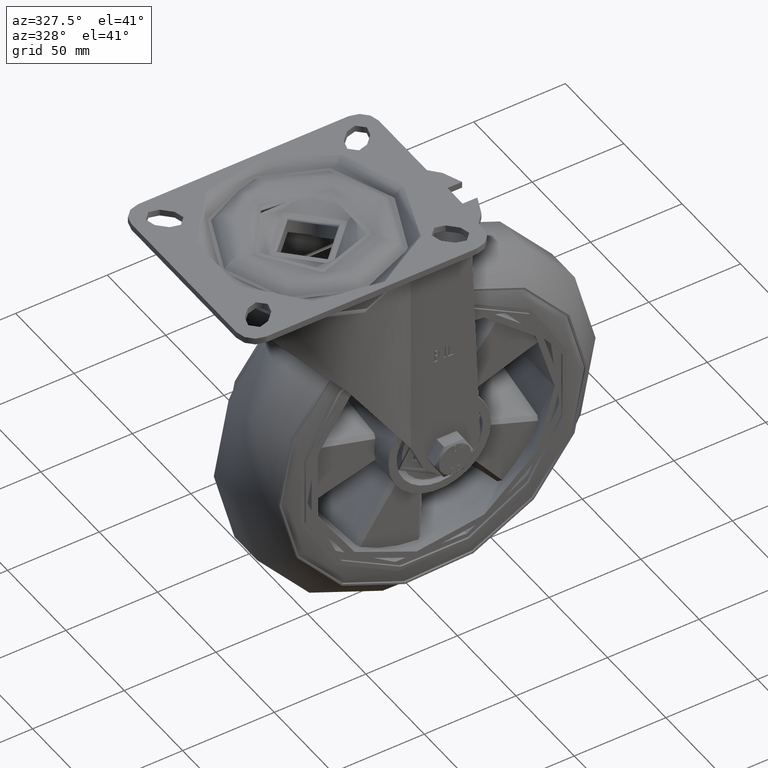
[diagram: clean part render]
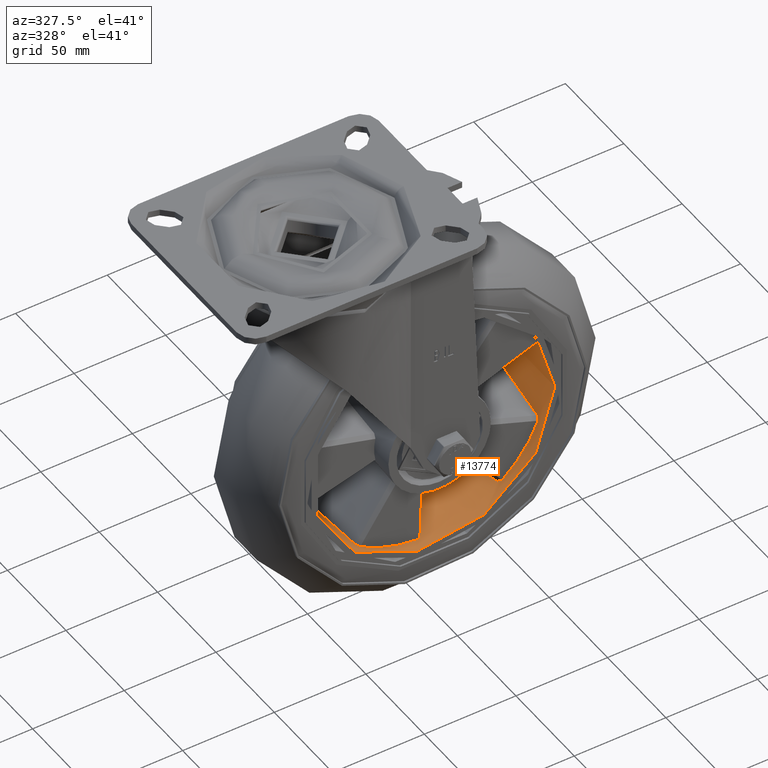
[diagram: same view with one face highlighted and labeled with its STEP entity id]
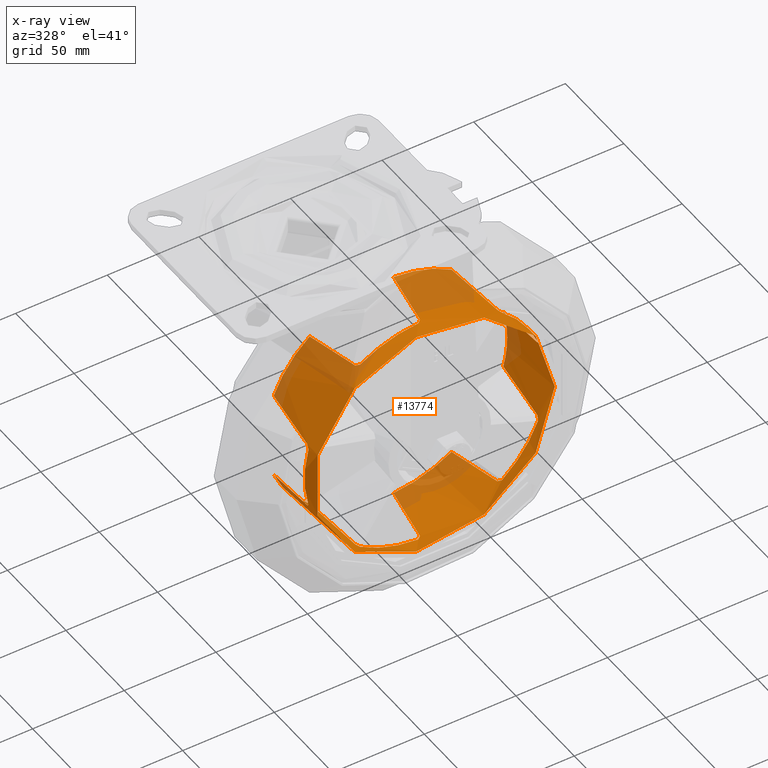
[diagram: x-ray of the same camera — body ghosted, the highlighted face saturated]
A machine part, auxiliary view. The second image highlights one B-rep face of the part: STEP entity #13774.
The next image is the same camera in x-ray: the body ghosted, the highlighted face saturated — about 31% of this face is hidden behind the body in this view.
In plain terms, the highlighted cylindrical surface (bore or boss wall) has radius 66 mm, axis along (-0, 1, -0).
Its self-contained STEP definition (entity closure, byte-faithful):
#1314=B_SPLINE_CURVE_WITH_KNOTS('',3,(#23338,#23339,#23340,#23341,#23342,
#23343,#23344),.UNSPECIFIED.,.F.,.F.,(4,3,4),(0.000373309078913234,1.61933112075885,
3.23828386339741),.UNSPECIFIED.);
#1315=B_SPLINE_CURVE_WITH_KNOTS('',3,(#23346,#23347,#23348,#23349,#23350,
#23351,#23352,#23353,#23354,#23355),.UNSPECIFIED.,.F.,.F.,(4,2,2,2,4),(-0.278702464257181,
-0.209075459326917,-0.13944982305344,-0.0697292167857195,-1.36745781365022E-10),
 .UNSPECIFIED.);
#1316=B_SPLINE_CURVE_WITH_KNOTS('',3,(#23359,#23360,#23361,#23362,#23363,
#23364,#23365,#23366,#23367,#23368),.UNSPECIFIED.,.F.,.F.,(4,2,2,2,4),(-0.278699814118605,
-0.20907020809636,-0.139448428934498,-0.0697253856518913,0.),
 .UNSPECIFIED.);
#1317=B_SPLINE_CURVE_WITH_KNOTS('',3,(#23370,#23371,#23372,#23373,#23374,
#23375,#23376),.UNSPECIFIED.,.F.,.F.,(4,3,4),(0.000373309696829027,1.61933112069939,
3.23828386333807),.UNSPECIFIED.);
#1318=B_SPLINE_CURVE_WITH_KNOTS('',3,(#23380,#23381,#23382,#23383,#23384,
#23385,#23386),.UNSPECIFIED.,.F.,.F.,(4,3,4),(0.000373308474533572,1.61933112069983,
3.23828386334072),.UNSPECIFIED.);
#1319=B_SPLINE_CURVE_WITH_KNOTS('',3,(#23388,#23389,#23390,#23391,#23392,
#23393,#23394,#23395,#23396,#23397),.UNSPECIFIED.,.F.,.F.,(4,2,2,2,4),(-0.278702463951982,
-0.209075459151046,-0.139449822948828,-0.0697292158378506,-8.03676569738343E-11),
 .UNSPECIFIED.);
#1320=B_SPLINE_CURVE_WITH_KNOTS('',3,(#23401,#23402,#23403,#23404,#23405,
#23406,#23407,#23408,#23409,#23410),.UNSPECIFIED.,.F.,.F.,(4,2,2,2,4),(-0.278699813644394,
-0.209070207647534,-0.13944842849009,-0.0697253854688297,0.),
 .UNSPECIFIED.);
#1321=B_SPLINE_CURVE_WITH_KNOTS('',3,(#23412,#23413,#23414,#23415,#23416,
#23417,#23418),.UNSPECIFIED.,.F.,.F.,(4,3,4),(-3.23828386335999,-1.6193311207198,
-0.000373308290675459),.UNSPECIFIED.);
#1322=B_SPLINE_CURVE_WITH_KNOTS('',3,(#23422,#23423,#23424,#23425,#23426,
#23427,#23428),.UNSPECIFIED.,.F.,.F.,(4,3,4),(-3.23842418672423,-1.61946629773931,
-0.000513477994222188),.UNSPECIFIED.);
#1323=B_SPLINE_CURVE_WITH_KNOTS('',3,(#23430,#23431,#23432,#23433,#23434,
#23435,#23436,#23437,#23438,#23439),.UNSPECIFIED.,.F.,.F.,(4,2,2,2,4),(-0.278702464174348,
-0.209075459254645,-0.1394498230114,-0.0697292167454598,-1.02857999895178E-10),
 .UNSPECIFIED.);
#1324=B_SPLINE_CURVE_WITH_KNOTS('',3,(#23443,#23444,#23445,#23446,#23447,
#23448,#23449,#23450,#23451,#23452),.UNSPECIFIED.,.F.,.F.,(4,2,2,2,4),(-0.278699813819612,
-0.209070207832421,-0.139448428691425,-0.0697253855563032,0.),
 .UNSPECIFIED.);
#1325=B_SPLINE_CURVE_WITH_KNOTS('',3,(#23454,#23455,#23456,#23457,#23458,
#23459,#23460),.UNSPECIFIED.,.F.,.F.,(4,3,4),(0.000513477994222404,1.61946629773886,
3.23842418672286),.UNSPECIFIED.);
#1326=B_SPLINE_CURVE_WITH_KNOTS('',3,(#23464,#23465,#23466,#23467,#23468,
#23469,#23470),.UNSPECIFIED.,.F.,.F.,(4,3,4),(0.000513477994212666,1.61946629773902,
3.2384241872735),.UNSPECIFIED.);
#1327=B_SPLINE_CURVE_WITH_KNOTS('',3,(#23472,#23473,#23474,#23475,#23476,
#23477,#23478,#23479,#23480,#23481),.UNSPECIFIED.,.F.,.F.,(4,2,2,2,4),(-0.278702463878506,
-0.20907545904845,-0.13944982292566,-0.0697292166703985,-4.1014691642971E-11),
 .UNSPECIFIED.);
#1328=B_SPLINE_CURVE_WITH_KNOTS('',3,(#23485,#23486,#23487,#23488,#23489,
#23490,#23491,#23492,#23493,#23494),.UNSPECIFIED.,.F.,.F.,(4,2,2,2,4),(-0.278699813708521,
-0.20907020858314,-0.139448428607214,-0.069725385474952,0.),
 .UNSPECIFIED.);
#1329=B_SPLINE_CURVE_WITH_KNOTS('',3,(#23496,#23497,#23498,#23499,#23500,
#23501,#23502),.UNSPECIFIED.,.F.,.F.,(4,3,4),(0.000373308469160007,1.61933112069251,
3.23828386333113),.UNSPECIFIED.);
#1330=B_SPLINE_CURVE_WITH_KNOTS('',3,(#23506,#23507,#23508,#23509,#23510,
#23511,#23512),.UNSPECIFIED.,.F.,.F.,(4,3,4),(0.000513477994203987,1.61946629773909,
3.23842418584781),.UNSPECIFIED.);
#1331=B_SPLINE_CURVE_WITH_KNOTS('',3,(#23514,#23515,#23516,#23517,#23518,
#23519,#23520,#23521,#23522,#23523),.UNSPECIFIED.,.F.,.F.,(4,2,2,2,4),(-0.278702464622074,
-0.209075459567133,-0.13944982313113,-0.0697292168348464,-1.53688284321163E-10),
 .UNSPECIFIED.);
#1332=B_SPLINE_CURVE_WITH_KNOTS('',3,(#23527,#23528,#23529,#23530,#23531,
#23532,#23533,#23534,#23535,#23536),.UNSPECIFIED.,.F.,.F.,(4,2,2,2,4),(-0.278699813842626,
-0.20907020784408,-0.139448428697376,-0.0697253855500482,0.),
 .UNSPECIFIED.);
#1333=B_SPLINE_CURVE_WITH_KNOTS('',3,(#23538,#23539,#23540,#23541,#23542,
#23543,#23544),.UNSPECIFIED.,.F.,.F.,(4,3,4),(0.000373309048616162,1.61933112072778,
3.23828386336536),.UNSPECIFIED.);
#2113=FACE_OUTER_BOUND('',#2971,.T.);
#2971=EDGE_LOOP('',(#10207,#10208,#10209,#10210,#10211,#10212,#10213,#10214,
#10215,#10216,#10217,#10218,#10219,#10220,#10221,#10222,#10223,#10224,#10225,
#10226,#10227,#10228,#10229,#10230,#10231,#10232,#10233,#10234,#10235,#10236,
#10237,#10238,#10239,#10240));
#3934=LINE('',#23334,#4765);
#4765=VECTOR('',#16850,66.);
#5552=CIRCLE('',#15007,66.);
#5553=CIRCLE('',#15008,66.);
#5554=CIRCLE('',#15009,66.);
#5555=CIRCLE('',#15010,66.);
#5556=CIRCLE('',#15011,66.);
#5557=CIRCLE('',#15012,66.);
#5558=CIRCLE('',#15013,66.);
#5559=CIRCLE('',#15014,66.);
#5560=CIRCLE('',#15015,66.);
#5561=CIRCLE('',#15016,66.);
#5562=CIRCLE('',#15017,66.);
#5563=CIRCLE('',#15018,66.);
#6217=VERTEX_POINT('',#23331);
#6218=VERTEX_POINT('',#23333);
#6219=VERTEX_POINT('',#23335);
#6220=VERTEX_POINT('',#23337);
#6221=VERTEX_POINT('',#23345);
#6222=VERTEX_POINT('',#23356);
#6223=VERTEX_POINT('',#23358);
#6224=VERTEX_POINT('',#23369);
#6225=VERTEX_POINT('',#23377);
#6226=VERTEX_POINT('',#23379);
#6227=VERTEX_POINT('',#23387);
#6228=VERTEX_POINT('',#23398);
#6229=VERTEX_POINT('',#23400);
#6230=VERTEX_POINT('',#23411);
#6231=VERTEX_POINT('',#23419);
#6232=VERTEX_POINT('',#23421);
#6233=VERTEX_POINT('',#23429);
#6234=VERTEX_POINT('',#23440);
#6235=VERTEX_POINT('',#23442);
#6236=VERTEX_POINT('',#23453);
#6237=VERTEX_POINT('',#23461);
#6238=VERTEX_POINT('',#23463);
#6239=VERTEX_POINT('',#23471);
#6240=VERTEX_POINT('',#23482);
#6241=VERTEX_POINT('',#23484);
#6242=VERTEX_POINT('',#23495);
#6243=VERTEX_POINT('',#23503);
#6244=VERTEX_POINT('',#23505);
#6245=VERTEX_POINT('',#23513);
#6246=VERTEX_POINT('',#23524);
#6247=VERTEX_POINT('',#23526);
#6248=VERTEX_POINT('',#23537);
#7726=EDGE_CURVE('',#6217,#6217,#5552,.T.);
#7727=EDGE_CURVE('',#6217,#6218,#3934,.T.);
#7728=EDGE_CURVE('',#6219,#6218,#5553,.T.);
#7729=EDGE_CURVE('',#6220,#6219,#1314,.T.);
#7730=EDGE_CURVE('',#6221,#6220,#1315,.F.);
#7731=EDGE_CURVE('',#6222,#6221,#5554,.T.);
#7732=EDGE_CURVE('',#6223,#6222,#1316,.F.);
#7733=EDGE_CURVE('',#6223,#6224,#1317,.T.);
#7734=EDGE_CURVE('',#6225,#6224,#5555,.T.);
#7735=EDGE_CURVE('',#6226,#6225,#1318,.T.);
#7736=EDGE_CURVE('',#6227,#6226,#1319,.F.);
#7737=EDGE_CURVE('',#6228,#6227,#5556,.T.);
#7738=EDGE_CURVE('',#6229,#6228,#1320,.F.);
#7739=EDGE_CURVE('',#6230,#6229,#1321,.T.);
#7740=EDGE_CURVE('',#6231,#6230,#5557,.T.);
#7741=EDGE_CURVE('',#6232,#6231,#1322,.T.);
#7742=EDGE_CURVE('',#6233,#6232,#1323,.F.);
#7743=EDGE_CURVE('',#6234,#6233,#5558,.T.);
#7744=EDGE_CURVE('',#6235,#6234,#1324,.F.);
#7745=EDGE_CURVE('',#6236,#6235,#1325,.T.);
#7746=EDGE_CURVE('',#6237,#6236,#5559,.T.);
#7747=EDGE_CURVE('',#6237,#6238,#1326,.T.);
#7748=EDGE_CURVE('',#6239,#6238,#1327,.F.);
#7749=EDGE_CURVE('',#6240,#6239,#5560,.T.);
#7750=EDGE_CURVE('',#6241,#6240,#1328,.F.);
#7751=EDGE_CURVE('',#6241,#6242,#1329,.T.);
#7752=EDGE_CURVE('',#6243,#6242,#5561,.T.);
#7753=EDGE_CURVE('',#6243,#6244,#1330,.T.);
#7754=EDGE_CURVE('',#6245,#6244,#1331,.F.);
#7755=EDGE_CURVE('',#6246,#6245,#5562,.T.);
#7756=EDGE_CURVE('',#6247,#6246,#1332,.F.);
#7757=EDGE_CURVE('',#6247,#6248,#1333,.T.);
#7758=EDGE_CURVE('',#6218,#6248,#5563,.T.);
#10207=ORIENTED_EDGE('',*,*,#7726,.F.);
#10208=ORIENTED_EDGE('',*,*,#7727,.T.);
#10209=ORIENTED_EDGE('',*,*,#7728,.F.);
#10210=ORIENTED_EDGE('',*,*,#7729,.F.);
#10211=ORIENTED_EDGE('',*,*,#7730,.F.);
#10212=ORIENTED_EDGE('',*,*,#7731,.F.);
#10213=ORIENTED_EDGE('',*,*,#7732,.F.);
#10214=ORIENTED_EDGE('',*,*,#7733,.T.);
#10215=ORIENTED_EDGE('',*,*,#7734,.F.);
#10216=ORIENTED_EDGE('',*,*,#7735,.F.);
#10217=ORIENTED_EDGE('',*,*,#7736,.F.);
#10218=ORIENTED_EDGE('',*,*,#7737,.F.);
#10219=ORIENTED_EDGE('',*,*,#7738,.F.);
#10220=ORIENTED_EDGE('',*,*,#7739,.F.);
#10221=ORIENTED_EDGE('',*,*,#7740,.F.);
#10222=ORIENTED_EDGE('',*,*,#7741,.F.);
#10223=ORIENTED_EDGE('',*,*,#7742,.F.);
#10224=ORIENTED_EDGE('',*,*,#7743,.F.);
#10225=ORIENTED_EDGE('',*,*,#7744,.F.);
#10226=ORIENTED_EDGE('',*,*,#7745,.F.);
#10227=ORIENTED_EDGE('',*,*,#7746,.F.);
#10228=ORIENTED_EDGE('',*,*,#7747,.T.);
#10229=ORIENTED_EDGE('',*,*,#7748,.F.);
#10230=ORIENTED_EDGE('',*,*,#7749,.F.);
#10231=ORIENTED_EDGE('',*,*,#7750,.F.);
#10232=ORIENTED_EDGE('',*,*,#7751,.T.);
#10233=ORIENTED_EDGE('',*,*,#7752,.F.);
#10234=ORIENTED_EDGE('',*,*,#7753,.T.);
#10235=ORIENTED_EDGE('',*,*,#7754,.F.);
#10236=ORIENTED_EDGE('',*,*,#7755,.F.);
#10237=ORIENTED_EDGE('',*,*,#7756,.F.);
#10238=ORIENTED_EDGE('',*,*,#7757,.T.);
#10239=ORIENTED_EDGE('',*,*,#7758,.F.);
#10240=ORIENTED_EDGE('',*,*,#7727,.F.);
#13459=CYLINDRICAL_SURFACE('',#15006,66.);
#13774=ADVANCED_FACE('',(#2113),#13459,.F.);
#15006=AXIS2_PLACEMENT_3D('',#23330,#16846,#16847);
#15007=AXIS2_PLACEMENT_3D('',#23332,#16848,#16849);
#15008=AXIS2_PLACEMENT_3D('',#23336,#16851,#16852);
#15009=AXIS2_PLACEMENT_3D('',#23357,#16853,#16854);
#15010=AXIS2_PLACEMENT_3D('',#23378,#16855,#16856);
#15011=AXIS2_PLACEMENT_3D('',#23399,#16857,#16858);
#15012=AXIS2_PLACEMENT_3D('',#23420,#16859,#16860);
#15013=AXIS2_PLACEMENT_3D('',#23441,#16861,#16862);
#15014=AXIS2_PLACEMENT_3D('',#23462,#16863,#16864);
#15015=AXIS2_PLACEMENT_3D('',#23483,#16865,#16866);
#15016=AXIS2_PLACEMENT_3D('',#23504,#16867,#16868);
#15017=AXIS2_PLACEMENT_3D('',#23525,#16869,#16870);
#15018=AXIS2_PLACEMENT_3D('',#23545,#16871,#16872);
#16846=DIRECTION('center_axis',(-3.38669239203968E-15,1.,0.));
#16847=DIRECTION('ref_axis',(-1.,-3.38669239203968E-15,0.));
#16848=DIRECTION('center_axis',(-3.38669239203968E-15,1.,0.));
#16849=DIRECTION('ref_axis',(-1.,-3.38669239203968E-15,0.));
#16850=DIRECTION('',(-3.38669239203968E-15,1.,0.));
#16851=DIRECTION('center_axis',(3.59602151677234E-15,-1.,-6.44248801041007E-16));
#16852=DIRECTION('ref_axis',(-0.809016994374947,-2.53056257514779E-15,-0.587785252292473));
#16853=DIRECTION('center_axis',(3.38669239203968E-15,-1.,0.));
#16854=DIRECTION('ref_axis',(-1.,-3.38669239203968E-15,0.));
#16855=DIRECTION('center_axis',(3.59602151677234E-15,-1.,-6.44248801041007E-16));
#16856=DIRECTION('ref_axis',(-0.809016994374947,-2.53056257514779E-15,-0.587785252292473));
#16857=DIRECTION('center_axis',(3.38669239203968E-15,-1.,0.));
#16858=DIRECTION('ref_axis',(-1.,-3.38669239203968E-15,0.));
#16859=DIRECTION('center_axis',(3.59602151677234E-15,-1.,-6.44248801041007E-16));
#16860=DIRECTION('ref_axis',(-0.809016994374947,-2.53056257514779E-15,-0.587785252292473));
#16861=DIRECTION('center_axis',(3.38669239203968E-15,-1.,0.));
#16862=DIRECTION('ref_axis',(-1.,-3.38669239203968E-15,0.));
#16863=DIRECTION('center_axis',(3.59602151677234E-15,-1.,-6.44248801041007E-16));
#16864=DIRECTION('ref_axis',(-0.809016994374947,-2.53056257514779E-15,-0.587785252292473));
#16865=DIRECTION('center_axis',(3.38669239203968E-15,-1.,0.));
#16866=DIRECTION('ref_axis',(-1.,-3.38669239203968E-15,0.));
#16867=DIRECTION('center_axis',(3.59602151677234E-15,-1.,-6.44248801041007E-16));
#16868=DIRECTION('ref_axis',(-0.809016994374947,-2.53056257514779E-15,-0.587785252292473));
#16869=DIRECTION('center_axis',(3.38669239203968E-15,-1.,0.));
#16870=DIRECTION('ref_axis',(-1.,-3.38669239203968E-15,0.));
#16871=DIRECTION('center_axis',(3.59602151677234E-15,-1.,-6.44248801041007E-16));
#16872=DIRECTION('ref_axis',(-0.809016994374947,-2.53056257514779E-15,-0.587785252292473));
#23330=CARTESIAN_POINT('Origin',(-6.93889390390724E-15,3.49213689726077E-15,
0.));
#23331=CARTESIAN_POINT('',(66.0000000000001,-24.9999999999998,8.08266887437253E-15));
#23332=CARTESIAN_POINT('Origin',(7.77284158970849E-14,-25.,0.));
#23333=CARTESIAN_POINT('',(65.9999999999999,15.7500000000004,-8.08266887437253E-15));
#23334=CARTESIAN_POINT('',(66.,2.2701383477188E-13,-8.08266887437253E-15));
#23335=CARTESIAN_POINT('',(63.8541855060899,15.7499999995693,-16.6926029560646));
#23336=CARTESIAN_POINT('Origin',(-8.82230593111864E-14,15.7500000000001,
-2.98073805919023E-14));
#23337=CARTESIAN_POINT('',(62.1582067025586,-16.1048068882104,-22.1836020837835));
#23338=CARTESIAN_POINT('Ctrl Pts',(62.1599495072485,-16.1048034630644,-22.1842438964292));
#23339=CARTESIAN_POINT('Ctrl Pts',(62.4817673644864,-10.793891410378,-21.2825146395724));
#23340=CARTESIAN_POINT('Ctrl Pts',(62.7841755685075,-5.48800579538183,-20.3731891581357));
#23341=CARTESIAN_POINT('Ctrl Pts',(63.0668681958044,-0.177374521074633,
-19.456878845088));
#23342=CARTESIAN_POINT('Ctrl Pts',(63.3495599379759,5.13324012536901,-18.5405714010556));
#23343=CARTESIAN_POINT('Ctrl Pts',(63.6120301688618,10.4391074836043,-17.6189193505488));
#23344=CARTESIAN_POINT('Ctrl Pts',(63.8541855054961,15.7499999995408,-16.6926029554866));
#23345=CARTESIAN_POINT('',(61.470787075102,-17.7499999999997,-24.0279490666837));
#23346=CARTESIAN_POINT('Ctrl Pts',(62.159948771819,-16.104815520309,-22.184245957094));
#23347=CARTESIAN_POINT('Ctrl Pts',(62.1461080073904,-16.3332275877814,-22.223027586612));
#23348=CARTESIAN_POINT('Ctrl Pts',(62.1190038296965,-16.5529695080678,-22.2989478419109));
#23349=CARTESIAN_POINT('Ctrl Pts',(62.0394885038554,-16.9561333958003,-22.5192268359961));
#23350=CARTESIAN_POINT('Ctrl Pts',(61.9879529154006,-17.1350197482125,-22.6610984058333));
#23351=CARTESIAN_POINT('Ctrl Pts',(61.8647284326672,-17.4330827443555,-22.9953723617695));
#23352=CARTESIAN_POINT('Ctrl Pts',(61.7938162765813,-17.5501881824202,-23.1856078628594));
#23353=CARTESIAN_POINT('Ctrl Pts',(61.6382843326253,-17.709551581361,-23.5959754707505));
#23354=CARTESIAN_POINT('Ctrl Pts',(61.5554057654661,-17.7499999998401,-23.8114687722008));
#23355=CARTESIAN_POINT('Ctrl Pts',(61.4707870752172,-17.7499999999997,-24.0279490667288));
#23356=CARTESIAN_POINT('',(41.8474553979896,-17.7499999999997,-51.0371480073889));
#23357=CARTESIAN_POINT('Origin',(5.42709575815677E-14,-17.7499999999999,
0.));
#23358=CARTESIAN_POINT('',(40.3058015608174,-16.1048068445291,-52.2608575243825));
#23359=CARTESIAN_POINT('Ctrl Pts',(41.8474553979183,-17.7499999999997,-51.037148007302));
#23360=CARTESIAN_POINT('Ctrl Pts',(41.6679694922204,-17.7499999998201,-51.1843158786762));
#23361=CARTESIAN_POINT('Ctrl Pts',(41.4888816929355,-17.7096648921843,-51.3295308137281));
#23362=CARTESIAN_POINT('Ctrl Pts',(41.1470759414285,-17.5507315368467,-51.6039355898291));
#23363=CARTESIAN_POINT('Ctrl Pts',(40.9882268424016,-17.4339369534704,-51.7300395946424));
#23364=CARTESIAN_POINT('Ctrl Pts',(40.7081698852323,-17.1362185757035,-51.9507144621652));
#23365=CARTESIAN_POINT('Ctrl Pts',(40.5888988829294,-16.9571863963757,-52.0437802136764));
#23366=CARTESIAN_POINT('Ctrl Pts',(40.4035659490992,-16.5535803885018,-52.1877919726466));
#23367=CARTESIAN_POINT('Ctrl Pts',(40.3396042139595,-16.3335463307842,-52.2371326948384));
#23368=CARTESIAN_POINT('Ctrl Pts',(40.3069522231388,-16.1048155119209,-52.2623153187994));
#23369=CARTESIAN_POINT('',(35.6076372986452,15.7499999995691,-55.5706412245089));
#23370=CARTESIAN_POINT('Ctrl Pts',(40.3069504830568,-16.1048034563983,-52.2623166608249));
#23371=CARTESIAN_POINT('Ctrl Pts',(39.5488021846751,-10.7938914059378,-52.847033295447));
#23372=CARTESIAN_POINT('Ctrl Pts',(38.7774315347198,-5.48800579315972,-53.4156376153996));
#23373=CARTESIAN_POINT('Ctrl Pts',(37.9933254668946,-0.177374521074752,
-53.9676497393208));
#23374=CARTESIAN_POINT('Ctrl Pts',(37.2092218538184,5.13324012536897,-54.5196601350941));
#23375=CARTESIAN_POINT('Ctrl Pts',(36.4137864272883,10.4391074836045,-55.0540903050187));
#23376=CARTESIAN_POINT('Ctrl Pts',(35.607637297912,15.7499999995406,-55.5706412241228));
#23377=CARTESIAN_POINT('',(3.85641966805917,15.749999999569,-65.8872372120639));
#23378=CARTESIAN_POINT('Origin',(-8.82230593111864E-14,15.7500000000001,
-2.98073805919023E-14));
#23379=CARTESIAN_POINT('',(-1.88991709818651,-16.1048068950924,-65.9710775665634));
#23380=CARTESIAN_POINT('Ctrl Pts',(-1.88998895051525,-16.1048034684125,
-65.972933402774));
#23381=CARTESIAN_POINT('Ctrl Pts',(-0.932946277546101,-10.7938914139333,
-66.0003507082896));
#23382=CARTESIAN_POINT('Ctrl Pts',(0.0253229216092964,-5.48800579716116,
-66.0069609741321));
#23383=CARTESIAN_POINT('Ctrl Pts',(0.984142642122192,-0.177374521074967,
-65.9926621805739));
#23384=CARTESIAN_POINT('Ctrl Pts',(1.94295936019891,5.13324012536633,-65.9783634317907));
#23385=CARTESIAN_POINT('Ctrl Pts',(2.90061031045102,10.4391074835994,-65.9431813087012));
#23386=CARTESIAN_POINT('Ctrl Pts',(3.85641966842541,15.7499999995405,-65.8872372113204));
#23387=CARTESIAN_POINT('',(-3.85641966858823,-17.7499999999999,-65.8872372113122));
#23388=CARTESIAN_POINT('Ctrl Pts',(-1.88999112910869,-16.1048155271765,
-65.9729333403623));
#23389=CARTESIAN_POINT('Ctrl Pts',(-1.93115168394251,-16.3332275939047,
-65.9717541737016));
#23390=CARTESIAN_POINT('Ctrl Pts',(-2.01173179033912,-16.5529695132211,
-65.9694372179575));
#23391=CARTESIAN_POINT('Ctrl Pts',(-2.24580115188607,-16.9561333991494,
-65.9618836018004));
#23392=CARTESIAN_POINT('Ctrl Pts',(-2.3966544060471,-17.135019750771,-65.9567110706625));
#23393=CARTESIAN_POINT('Ctrl Pts',(-2.75264629225342,-17.4330827475479,
-65.9428139564483));
#23394=CARTESIAN_POINT('Ctrl Pts',(-2.95548406951898,-17.5501881861809,
-65.9341584909547));
#23395=CARTESIAN_POINT('Ctrl Pts',(-3.39382887162302,-17.7095515825514,
-65.9130493868619));
#23396=CARTESIAN_POINT('Ctrl Pts',(-3.62438606351263,-17.7499999999061,
-65.9008182779385));
#23397=CARTESIAN_POINT('Ctrl Pts',(-3.85641966858823,-17.7499999999999,
-65.8872372113122));
#23398=CARTESIAN_POINT('',(-35.6076372977754,-17.7500000000001,-55.5706412242118));
#23399=CARTESIAN_POINT('Origin',(5.42709575815677E-14,-17.7499999999999,
0.));
#23400=CARTESIAN_POINT('',(-37.2478514564847,-16.1048068622877,-54.4825883242611));
#23401=CARTESIAN_POINT('Ctrl Pts',(-35.6076372977754,-17.7500000000001,
-55.5706412242118));
#23402=CARTESIAN_POINT('Ctrl Pts',(-35.8030664556974,-17.7499999999523,
-55.445417357447));
#23403=CARTESIAN_POINT('Ctrl Pts',(-35.9965152401099,-17.7096648926119,
-55.3199686212526));
#23404=CARTESIAN_POINT('Ctrl Pts',(-36.3631134765183,-17.5507315389452,
-55.0796877731054));
#23405=CARTESIAN_POINT('Ctrl Pts',(-36.5321325834561,-17.4339369567506,
-54.967581582716));
#23406=CARTESIAN_POINT('Ctrl Pts',(-36.8285492143188,-17.1362185824178,
-54.7694238722932));
#23407=CARTESIAN_POINT('Ctrl Pts',(-36.9539167712625,-16.9571864055199,
-54.6847493065593));
#23408=CARTESIAN_POINT('Ctrl Pts',(-37.1481511230639,-16.5535804024747,
-54.5529892904321));
#23409=CARTESIAN_POINT('Ctrl Pts',(-37.2148422044735,-16.3335463469502,
-54.5074051851085));
#23410=CARTESIAN_POINT('Ctrl Pts',(-37.2488823271942,-16.1048155296868,
-54.4841331524586));
#23411=CARTESIAN_POINT('',(-41.8474553964487,15.7499999995688,-51.0371480094372));
#23412=CARTESIAN_POINT('Ctrl Pts',(-41.8474553963081,15.7499999995403,-51.0371480086206));
#23413=CARTESIAN_POINT('Ctrl Pts',(-41.1070724977183,10.4391074836053,-51.6442183787564));
#23414=CARTESIAN_POINT('Ctrl Pts',(-40.3529961373809,5.13324012536934,-52.2355744196364));
#23415=CARTESIAN_POINT('Ctrl Pts',(-39.5857017116265,-0.177374521075092,
-52.8107206769376));
#23416=CARTESIAN_POINT('Ctrl Pts',(-38.8184048830714,-5.48800579783534,
-53.3858687353229));
#23417=CARTESIAN_POINT('Ctrl Pts',(-38.0392633988922,-10.7938914152803,
-53.9437774209773));
#23418=CARTESIAN_POINT('Ctrl Pts',(-37.2488841241761,-16.1048034704294,
-54.4841319239246));
#23419=CARTESIAN_POINT('',(-61.4707870763458,15.7499999995687,-24.0279490658178));
#23420=CARTESIAN_POINT('Origin',(-8.82230593111864E-14,15.7500000000001,
-2.98073805919023E-14));
#23421=CARTESIAN_POINT('',(-63.3262397092077,-16.1048068907978,-18.5887661295818));
#23422=CARTESIAN_POINT('Ctrl Pts',(-63.3280269165323,-16.1048034650209,
-18.5892712836971));
#23423=CARTESIAN_POINT('Ctrl Pts',(-63.0583598733616,-10.7938914116777,
-19.5079453673429));
#23424=CARTESIAN_POINT('Ctrl Pts',(-62.7685251420979,-5.48800579603246,
-20.4213562178519));
#23425=CARTESIAN_POINT('Ctrl Pts',(-62.4586345931947,-0.177374521075178,
-21.3288293905965));
#23426=CARTESIAN_POINT('Ctrl Pts',(-62.148745014613,5.13324012536832,-22.2362997218842));
#23427=CARTESIAN_POINT('Ctrl Pts',(-61.8193544088844,10.4391074836034,-23.1362080245253));
#23428=CARTESIAN_POINT('Ctrl Pts',(-61.4707870755257,15.7499999995402,-24.0279490659364));
#23429=CARTESIAN_POINT('',(-63.8541855057228,-17.7500000000002,-16.6926029548475));
#23430=CARTESIAN_POINT('Ctrl Pts',(-63.3280275318044,-16.1048155228844,
-18.589269187653));
#23431=CARTESIAN_POINT('Ctrl Pts',(-63.3396253882823,-16.333227590169,-18.5497587923314));
#23432=CARTESIAN_POINT('Ctrl Pts',(-63.3623224544921,-16.5529695101702,
-18.4724065790886));
#23433=CARTESIAN_POINT('Ctrl Pts',(-63.4274699489164,-16.9561333972209,
-18.2474591927324));
#23434=CARTESIAN_POINT('Ctrl Pts',(-63.4691667985694,-17.1350197492796,
-18.102390822656));
#23435=CARTESIAN_POINT('Ctrl Pts',(-63.5659573995115,-17.4330827448999,
-17.7595279776132));
#23436=CARTESIAN_POINT('Ctrl Pts',(-63.6204058821518,-17.5501881827712,
-17.5639431046795));
#23437=CARTESIAN_POINT('Ctrl Pts',(-63.7357859242636,-17.7095515814335,
-17.1405293530346));
#23438=CARTESIAN_POINT('Ctrl Pts',(-63.7953995395977,-17.7499999998802,
-16.9174768102021));
#23439=CARTESIAN_POINT('Ctrl Pts',(-63.8541855056682,-17.7500000000002,
-16.6926029548332));
#23440=CARTESIAN_POINT('',(-63.8541855057659,-17.7500000000002,16.6926029548597));
#23441=CARTESIAN_POINT('Origin',(5.42709575815677E-14,-17.7499999999999,
0.));
#23442=CARTESIAN_POINT('',(-63.3262397564527,-16.1048068554957,18.5887661495637));
#23443=CARTESIAN_POINT('Ctrl Pts',(-63.854185505668,-17.7500000000002,16.6926029548341));
#23444=CARTESIAN_POINT('Ctrl Pts',(-63.7954814621661,-17.7499999998802,
16.9171634319415));
#23445=CARTESIAN_POINT('Ctrl Pts',(-63.7359515862186,-17.7096648924694,
17.1399099497933));
#23446=CARTESIAN_POINT('Ctrl Pts',(-63.6207160050332,-17.5507315382403,
17.562816456816));
#23447=CARTESIAN_POINT('Ctrl Pts',(-63.5663264586088,-17.4339369556469,
17.7582058977026));
#23448=CARTESIAN_POINT('Ctrl Pts',(-63.4694650533184,-17.1362185800609,
18.1013489657542));
#23449=CARTESIAN_POINT('Ctrl Pts',(-63.427675461546,-16.9571864022129,18.246746477201));
#23450=CARTESIAN_POINT('Ctrl Pts',(-63.3623859556857,-16.5535803972472,
18.4721904057566));
#23451=CARTESIAN_POINT('Ctrl Pts',(-63.3396415731731,-16.3335463408264,
18.5497036552949));
#23452=CARTESIAN_POINT('Ctrl Pts',(-63.3280275318044,-16.1048155228844,
18.5892691876529));
#23453=CARTESIAN_POINT('',(-61.4707870763458,15.7499999995687,24.0279490658177));
#23454=CARTESIAN_POINT('Ctrl Pts',(-61.4707870755254,15.7499999995402,24.0279490659362));
#23455=CARTESIAN_POINT('Ctrl Pts',(-61.8193544088839,10.4391074836048,23.1362080245253));
#23456=CARTESIAN_POINT('Ctrl Pts',(-62.148745014613,5.13324012536889,22.2362997218843));
#23457=CARTESIAN_POINT('Ctrl Pts',(-62.4586345931947,-0.177374521075191,
21.3288293905965));
#23458=CARTESIAN_POINT('Ctrl Pts',(-62.7685251420978,-5.48800579603155,
20.421356217852));
#23459=CARTESIAN_POINT('Ctrl Pts',(-63.0583598733615,-10.7938914116759,
19.5079453673432));
#23460=CARTESIAN_POINT('Ctrl Pts',(-63.3280269165323,-16.1048034650213,
18.589271283697));
#23461=CARTESIAN_POINT('',(-41.8474553964488,15.7499999995688,51.0371480094372));
#23462=CARTESIAN_POINT('Origin',(-8.82230593111864E-14,15.7500000000001,
-2.98073805919023E-14));
#23463=CARTESIAN_POINT('',(-37.2478514229111,-16.1048068975941,54.4825882855071));
#23464=CARTESIAN_POINT('Ctrl Pts',(-41.847455396308,15.7499999995403,51.0371480086204));
#23465=CARTESIAN_POINT('Ctrl Pts',(-41.1070724977181,10.4391074836044,51.6442183787564));
#23466=CARTESIAN_POINT('Ctrl Pts',(-40.3529961373808,5.13324012536884,52.2355744196364));
#23467=CARTESIAN_POINT('Ctrl Pts',(-39.5857017116265,-0.177374521075085,
52.8107206769376));
#23468=CARTESIAN_POINT('Ctrl Pts',(-38.8184048830713,-5.48800579783648,
53.3858687353231));
#23469=CARTESIAN_POINT('Ctrl Pts',(-38.0392633988918,-10.7938914152825,
53.9437774209773));
#23470=CARTESIAN_POINT('Ctrl Pts',(-37.2488841241762,-16.1048034704291,
54.4841319239246));
#23471=CARTESIAN_POINT('',(-35.6076372977754,-17.7500000000001,55.5706412242118));
#23472=CARTESIAN_POINT('Ctrl Pts',(-37.2488823271942,-16.1048155296868,
54.4841331524586));
#23473=CARTESIAN_POINT('Ctrl Pts',(-37.2148896415021,-16.3332275963266,
54.5073727540833));
#23474=CARTESIAN_POINT('Ctrl Pts',(-37.1483370931558,-16.5529695154632,
54.5528620959859));
#23475=CARTESIAN_POINT('Ctrl Pts',(-36.9545310970631,-16.9561334006294,
54.6843336112594));
#23476=CARTESIAN_POINT('Ctrl Pts',(-36.8294479132464,-17.135019751757,54.7688182637375));
#23477=CARTESIAN_POINT('Ctrl Pts',(-36.5332759105086,-17.4330827461057,
54.9668220415817));
#23478=CARTESIAN_POINT('Ctrl Pts',(-36.3640891489563,-17.55018818354,55.0790446754564));
#23479=CARTESIAN_POINT('Ctrl Pts',(-35.9970531351826,-17.7095515815884,
55.3196196612797));
#23480=CARTESIAN_POINT('Ctrl Pts',(-35.8033391806404,-17.7499999999522,
55.4452426052642));
#23481=CARTESIAN_POINT('Ctrl Pts',(-35.6076372977754,-17.7500000000001,
55.5706412242118));
#23482=CARTESIAN_POINT('',(-3.85641966858818,-17.7499999999999,65.8872372113122));
#23483=CARTESIAN_POINT('Origin',(5.42709575815677E-14,-17.7499999999999,
0.));
#23484=CARTESIAN_POINT('',(-1.88991709379515,-16.1048068597874,65.9710776176299));
#23485=CARTESIAN_POINT('Ctrl Pts',(-3.85641966858818,-17.7499999999999,
65.8872372113122));
#23486=CARTESIAN_POINT('Ctrl Pts',(-3.62470941940847,-17.7499999999063,
65.9007993517232));
#23487=CARTESIAN_POINT('Ctrl Pts',(-3.3944691514552,-17.7096648935827,65.9130155346166));
#23488=CARTESIAN_POINT('Ctrl Pts',(-2.95665140862982,-17.5507315416696,
65.9341052820015));
#23489=CARTESIAN_POINT('Ctrl Pts',(-2.75401771066936,-17.4339369583836,
65.9427564073402));
#23490=CARTESIAN_POINT('Ctrl Pts',(-2.39773743680935,-17.1362185817451,
65.9566727762903));
#23491=CARTESIAN_POINT('Ctrl Pts',(-2.24654249165744,-16.9571864043145,
65.9618588147103));
#23492=CARTESIAN_POINT('Ctrl Pts',(-2.01195700638257,-16.5535804003974,
65.969430809947));
#23493=CARTESIAN_POINT('Ctrl Pts',(-1.93120912379771,-16.3335463446141,
65.9717525281659));
#23494=CARTESIAN_POINT('Ctrl Pts',(-1.88999112910864,-16.1048155271765,
65.9729333403623));
#23495=CARTESIAN_POINT('',(3.85641966805918,15.749999999569,65.8872372120638));
#23496=CARTESIAN_POINT('Ctrl Pts',(-1.88998895051523,-16.1048034684127,
65.972933402774));
#23497=CARTESIAN_POINT('Ctrl Pts',(-0.932946277547229,-10.7938914139398,
66.0003507082896));
#23498=CARTESIAN_POINT('Ctrl Pts',(0.0253229216087511,-5.4880057971644,
66.0069609741321));
#23499=CARTESIAN_POINT('Ctrl Pts',(0.984142642122237,-0.177374521074904,
65.9926621805739));
#23500=CARTESIAN_POINT('Ctrl Pts',(1.94295936019935,5.13324012536862,65.9783634317907));
#23501=CARTESIAN_POINT('Ctrl Pts',(2.90061031045185,10.4391074836039,65.9431813087011));
#23502=CARTESIAN_POINT('Ctrl Pts',(3.85641966842541,15.7499999995405,65.8872372113204));
#23503=CARTESIAN_POINT('',(35.6076372986452,15.7499999995691,55.5706412245089));
#23504=CARTESIAN_POINT('Origin',(-8.82230593111864E-14,15.7500000000001,
-2.98073805919023E-14));
#23505=CARTESIAN_POINT('',(40.3058015342936,-16.1048068798238,52.2608574803255));
#23506=CARTESIAN_POINT('Ctrl Pts',(35.6076372979121,15.7499999995406,55.570641224123));
#23507=CARTESIAN_POINT('Ctrl Pts',(36.4137864272884,10.4391074836044,55.0540903050189));
#23508=CARTESIAN_POINT('Ctrl Pts',(37.2092218538184,5.13324012536905,54.5196601350941));
#23509=CARTESIAN_POINT('Ctrl Pts',(37.9933254668946,-0.177374521074827,
53.9676497393207));
#23510=CARTESIAN_POINT('Ctrl Pts',(38.7774315347197,-5.488005793159,53.4156376153997));
#23511=CARTESIAN_POINT('Ctrl Pts',(39.5488021846748,-10.7938914059362,52.8470332954471));
#23512=CARTESIAN_POINT('Ctrl Pts',(40.3069504830566,-16.1048034563971,52.262316660825));
#23513=CARTESIAN_POINT('',(41.8474553979119,-17.7499999999997,51.0371480072876));
#23514=CARTESIAN_POINT('Ctrl Pts',(40.3069522231389,-16.1048155119209,52.2623153187993));
#23515=CARTESIAN_POINT('Ctrl Pts',(40.3395587113828,-16.3332275801847,52.2371677883886));
#23516=CARTESIAN_POINT('Ctrl Pts',(40.4033875120959,-16.5529695015344,52.1879295354516));
#23517=CARTESIAN_POINT('Ctrl Pts',(40.588313696163,-16.956133391589,52.0442360152657));
#23518=CARTESIAN_POINT('Ctrl Pts',(40.7073162041247,-17.1350197451488,51.9513820322246));
#23519=CARTESIAN_POINT('Ctrl Pts',(40.9871511684334,-17.4330827428622,51.7308922521148));
#23520=CARTESIAN_POINT('Ctrl Pts',(41.1461628199025,-17.5501881814672,51.6046647813183));
#23521=CARTESIAN_POINT('Ctrl Pts',(41.4883835935994,-17.7095515811684,51.3299345477487));
#23522=CARTESIAN_POINT('Ctrl Pts',(41.6677190163987,-17.7499999998204,51.1845212540976));
#23523=CARTESIAN_POINT('Ctrl Pts',(41.8474553979215,-17.7499999999997,51.0371480072993));
#23524=CARTESIAN_POINT('',(61.4707870751966,-17.7499999999997,24.0279490667186));
#23525=CARTESIAN_POINT('Origin',(5.42709575815677E-14,-17.7499999999999,
0.));
#23526=CARTESIAN_POINT('',(62.158206752608,-16.1048068529104,22.183602095407));
#23527=CARTESIAN_POINT('Ctrl Pts',(61.470787075218,-17.7499999999996,24.0279490667269));
#23528=CARTESIAN_POINT('Ctrl Pts',(61.5552878431098,-17.74999999984,23.8117704533818));
#23529=CARTESIAN_POINT('Ctrl Pts',(61.6380542798976,-17.7096648923842,23.5965739520856));
#23530=CARTESIAN_POINT('Ctrl Pts',(61.7934049443091,-17.5507315378304,23.1867016256635));
#23531=CARTESIAN_POINT('Ctrl Pts',(61.8642499087281,-17.4339369550103,22.996658874237));
#23532=CARTESIAN_POINT('Ctrl Pts',(61.9875818204829,-17.136218578858,22.662116595396));
#23533=CARTESIAN_POINT('Ctrl Pts',(62.0392358434167,-16.9571864006715,22.5199242321833));
#23534=CARTESIAN_POINT('Ctrl Pts',(62.1189281397539,-16.5535803950765,22.2991600548496));
#23535=CARTESIAN_POINT('Ctrl Pts',(62.1460886925079,-16.3335463384029,22.2230817066444));
#23536=CARTESIAN_POINT('Ctrl Pts',(62.1599487718191,-16.104815520309,22.1842459570939));
#23537=CARTESIAN_POINT('',(63.8541855060899,15.7499999995693,16.6926029560646));
#23538=CARTESIAN_POINT('Ctrl Pts',(62.1599495072484,-16.1048034630654,22.1842438964294));
#23539=CARTESIAN_POINT('Ctrl Pts',(62.481767364486,-10.7938914103813,21.2825146395728));
#23540=CARTESIAN_POINT('Ctrl Pts',(62.7841755685074,-5.48800579538345,20.3731891581359));
#23541=CARTESIAN_POINT('Ctrl Pts',(63.0668681958044,-0.177374521074666,
19.4568788450879));
#23542=CARTESIAN_POINT('Ctrl Pts',(63.3495599379759,5.13324012536983,18.5405714010555));
#23543=CARTESIAN_POINT('Ctrl Pts',(63.6120301688618,10.4391074836062,17.6189193505485));
#23544=CARTESIAN_POINT('Ctrl Pts',(63.8541855054962,15.7499999995408,16.6926029554866));
#23545=CARTESIAN_POINT('Origin',(-8.82230593111864E-14,15.7500000000001,
-2.98073805919023E-14));